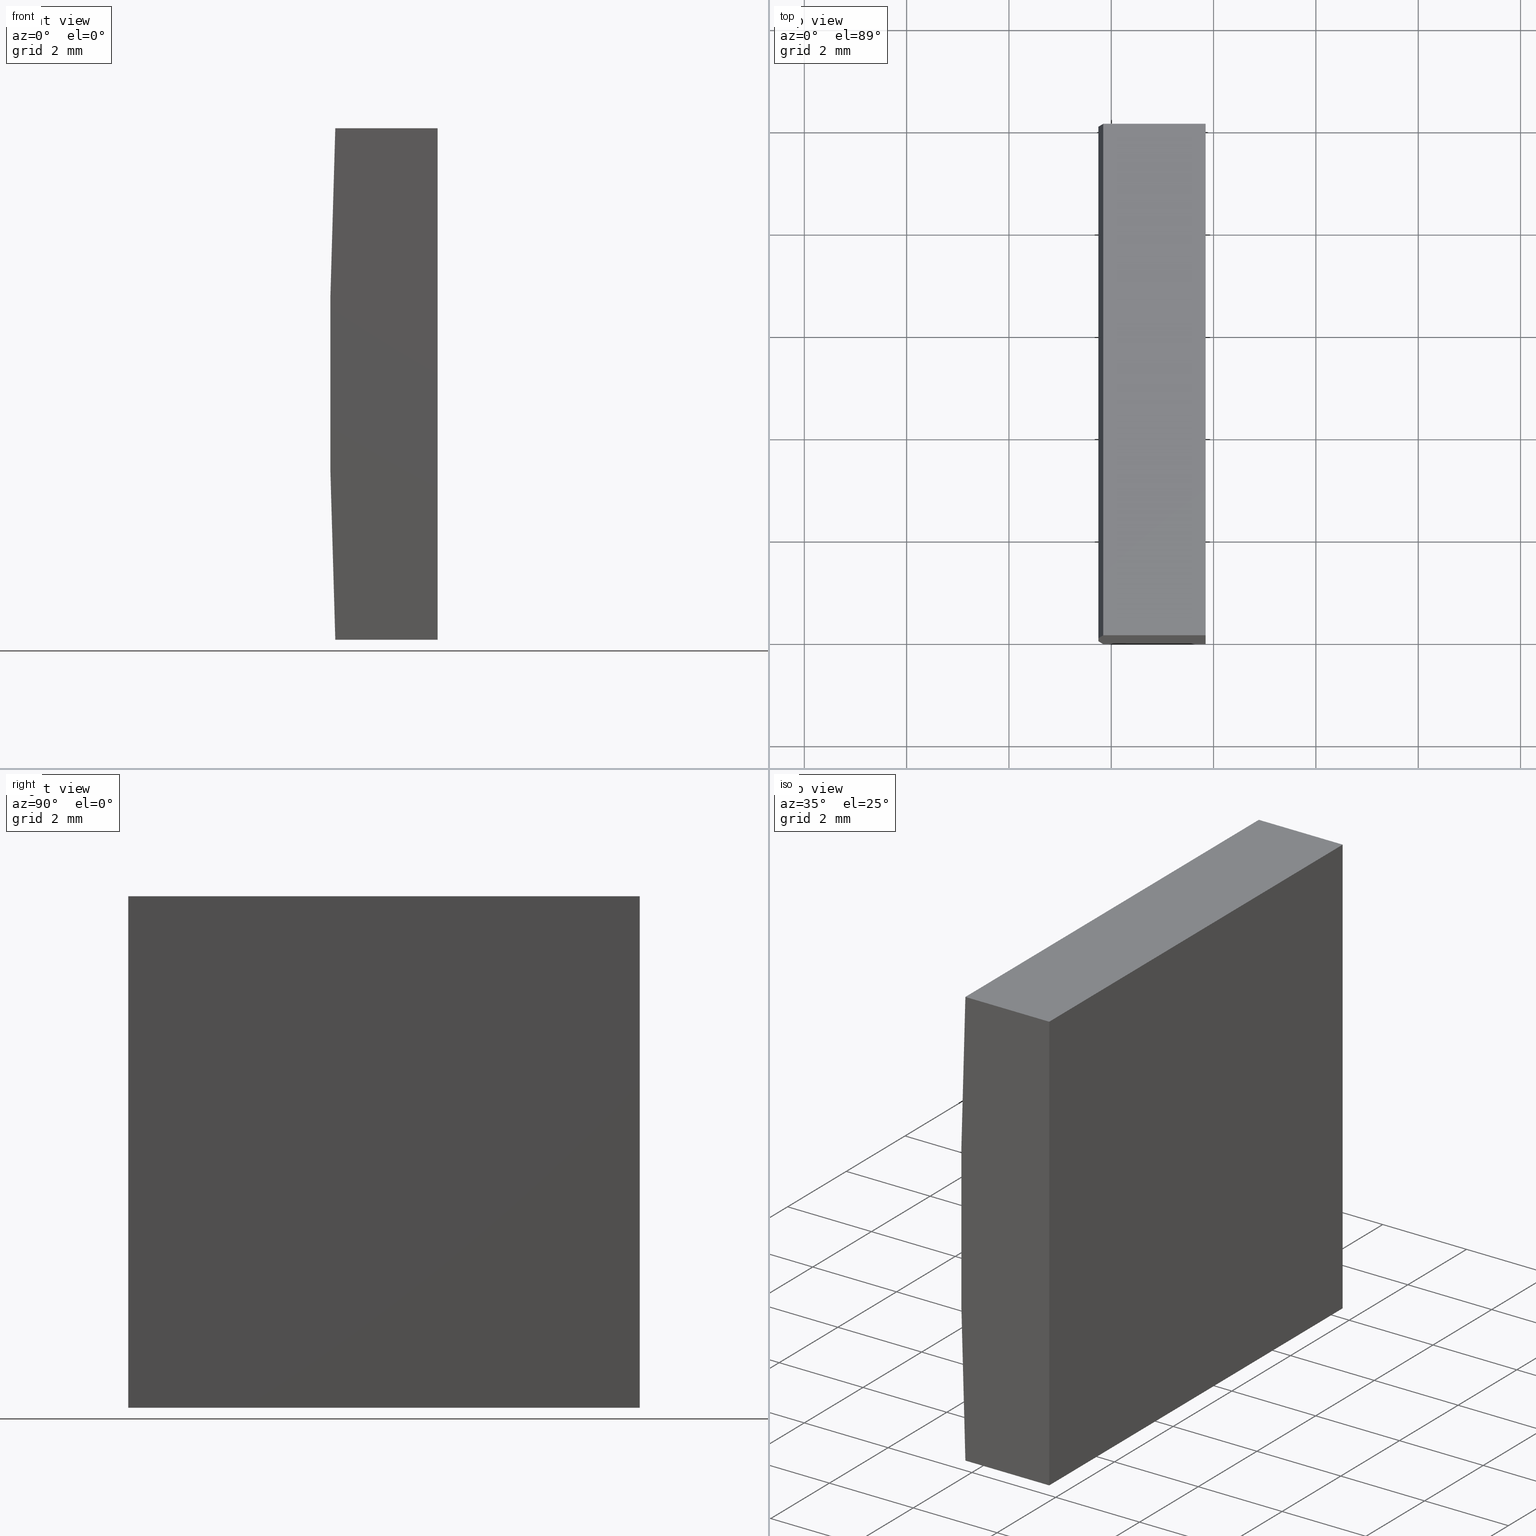
[diagram: canonical four-view strip — front | top / right | iso, engineering-drawing reading convention]
A machine part, canonical four-view strip (front | top / right | iso — engineering-drawing reading convention). The complete STEP part file that produces these views, byte-faithful:
ISO-10303-21;
HEADER;
FILE_DESCRIPTION (( 'STEP AP214' ),
    '1' );
FILE_NAME ('155273.STEP',
    '2019-06-25T06:14:44',
    ( 'user' ),
    ( '΢���й�' ),
    'SwSTEP 2.0',
    'SolidWorks 2016',
    '' );
FILE_SCHEMA (( 'AUTOMOTIVE_DESIGN' ));
ENDSEC;

DATA;
#1 = EDGE_LOOP ( 'NONE', ( #88, #16, #125, #121 ) ) ;
#2 = APPLICATION_CONTEXT ( 'automotive_design' ) ;
#3 = PRESENTATION_LAYER_ASSIGNMENT (  '', '', ( #74 ) ) ;
#4 = EDGE_CURVE ( 'NONE', #187, #155, #19, .T. ) ;
#5 = VECTOR ( 'NONE', #111, 1000.000000000000000 ) ;
#6 = EDGE_LOOP ( 'NONE', ( #146, #99, #149, #138 ) ) ;
#7 = EDGE_LOOP ( 'NONE', ( #32, #144, #176, #160 ) ) ;
#8 = AXIS2_PLACEMENT_3D ( 'NONE', #90, #14, #36 ) ;
#9 = ADVANCED_FACE ( 'NONE', ( #169 ), #158, .F. ) ;
#10 = SURFACE_STYLE_FILL_AREA ( #115 ) ;
#11 = SURFACE_STYLE_USAGE ( .BOTH. , #25 ) ;
#12 = ORIENTED_EDGE ( 'NONE', *, *, #18, .F. ) ;
#13 = LINE ( 'NONE', #142, #128 ) ;
#14 = DIRECTION ( 'NONE',  ( 0.0000000000000000000, 0.0000000000000000000, -1.000000000000000000 ) ) ;
#15 = PRESENTATION_STYLE_ASSIGNMENT (( #39 ) ) ;
#16 = ORIENTED_EDGE ( 'NONE', *, *, #168, .F. ) ;
#17 = MECHANICAL_DESIGN_GEOMETRIC_PRESENTATION_REPRESENTATION (  '', ( #47 ), #30 ) ;
#18 = EDGE_CURVE ( 'NONE', #183, #48, #190, .T. ) ;
#19 = CIRCLE ( 'NONE', #122, 114.6199999999999900 ) ;
#20 = DIRECTION ( 'NONE',  ( -0.0000000000000000000, -1.000000000000000000, -0.0000000000000000000 ) ) ;
#21 = VECTOR ( 'NONE', #20, 1000.000000000000000 ) ;
#22 = FACE_OUTER_BOUND ( 'NONE', #50, .T. ) ;
#23 = DIRECTION ( 'NONE',  ( 0.0000000000000000000, 1.000000000000000000, 0.0000000000000000000 ) ) ;
#24 = DIRECTION ( 'NONE',  ( -6.068825292768200200E-015, 0.0000000000000000000, 1.000000000000000000 ) ) ;
#25 = SURFACE_SIDE_STYLE ('',( #10 ) ) ;
#26 =( NAMED_UNIT ( * ) PLANE_ANGLE_UNIT ( ) SI_UNIT ( $, .RADIAN. ) );
#27 = EDGE_CURVE ( 'NONE', #48, #187, #91, .T. ) ;
#28 = LINE ( 'NONE', #93, #43 ) ;
#29 = VERTEX_POINT ( 'NONE', #82 ) ;
#30 =( GEOMETRIC_REPRESENTATION_CONTEXT ( 3 ) GLOBAL_UNCERTAINTY_ASSIGNED_CONTEXT ( ( #180 ) ) GLOBAL_UNIT_ASSIGNED_CONTEXT ( ( #95, #177, #156 ) ) REPRESENTATION_CONTEXT ( 'NONE', 'WORKASPACE' ) );
#31 = VECTOR ( 'NONE', #61, 1000.000000000000000 ) ;
#32 = ORIENTED_EDGE ( 'NONE', *, *, #110, .T. ) ;
#33 = EDGE_CURVE ( 'NONE', #56, #104, #172, .T. ) ;
#34 = PRODUCT_DEFINITION_FORMATION_WITH_SPECIFIED_SOURCE ( '�κ�', '', #166, .NOT_KNOWN. ) ;
#35 = FILL_AREA_STYLE ('',( #192 ) ) ;
#36 = DIRECTION ( 'NONE',  ( -1.000000000000000000, 0.0000000000000000000, -0.0000000000000000000 ) ) ;
#37 = EDGE_LOOP ( 'NONE', ( #194, #100, #12, #165 ) ) ;
#38 = DIRECTION ( 'NONE',  ( 0.0000000000000000000, 0.0000000000000000000, 1.000000000000000000 ) ) ;
#39 = SURFACE_STYLE_USAGE ( .BOTH. , #78 ) ;
#40 = ORIENTED_EDGE ( 'NONE', *, *, #168, .T. ) ;
#41 = CARTESIAN_POINT ( 'NONE',  ( -108.1547956651487400, 10.00000000000000000, -4.999999999999987600 ) ) ;
#42 = AXIS2_PLACEMENT_3D ( 'NONE', #80, #167, #38 ) ;
#43 = VECTOR ( 'NONE', #164, 1000.000000000000000 ) ;
#44 =( GEOMETRIC_REPRESENTATION_CONTEXT ( 3 ) GLOBAL_UNCERTAINTY_ASSIGNED_CONTEXT ( ( #76 ) ) GLOBAL_UNIT_ASSIGNED_CONTEXT ( ( #70, #97, #113 ) ) REPRESENTATION_CONTEXT ( 'NONE', 'WORKASPACE' ) );
#45 = DIRECTION ( 'NONE',  ( -1.000000000000000000, -0.0000000000000000000, -6.068825292768200200E-015 ) ) ;
#46 = CYLINDRICAL_SURFACE ( 'NONE', #86, 114.6199999999999900 ) ;
#47 = STYLED_ITEM ( 'NONE', ( #154 ), #141 ) ;
#48 = VERTEX_POINT ( 'NONE', #132 ) ;
#49 = CARTESIAN_POINT ( 'NONE',  ( 4.355204334851265500, 0.0000000000000000000, 4.286263797015675000E-017 ) ) ;
#50 = EDGE_LOOP ( 'NONE', ( #139, #134, #103, #40 ) ) ;
#51 = AXIS2_PLACEMENT_3D ( 'NONE', #150, #63, #186 ) ;
#52 = ADVANCED_FACE ( 'NONE', ( #181 ), #145, .T. ) ;
#53 = CLOSED_SHELL ( 'NONE', ( #117, #9, #188, #157, #52, #199 ) ) ;
#54 = DIRECTION ( 'NONE',  ( -0.0000000000000000000, -0.0000000000000000000, -1.000000000000000000 ) ) ;
#55 = CARTESIAN_POINT ( 'NONE',  ( 4.355204334851265500, 10.00000000000000000, 4.286263797015675000E-017 ) ) ;
#56 = VERTEX_POINT ( 'NONE', #120 ) ;
#57 = DIRECTION ( 'NONE',  ( 0.0000000000000000000, 0.0000000000000000000, 1.000000000000000000 ) ) ;
#58 = DIRECTION ( 'NONE',  ( -0.0000000000000000000, -1.000000000000000000, -0.0000000000000000000 ) ) ;
#59 = ORIENTED_EDGE ( 'NONE', *, *, #129, .F. ) ;
#60 = VECTOR ( 'NONE', #131, 1000.000000000000000 ) ;
#61 = DIRECTION ( 'NONE',  ( -0.0000000000000000000, -1.000000000000000000, -0.0000000000000000000 ) ) ;
#62 = SHAPE_DEFINITION_REPRESENTATION ( #112, #94 ) ;
#63 = DIRECTION ( 'NONE',  ( 0.0000000000000000000, 1.000000000000000000, 0.0000000000000000000 ) ) ;
#64 = CARTESIAN_POINT ( 'NONE',  ( -110.1556877235027200, 10.00000000000000000, 5.000000000000000000 ) ) ;
#65 = AXIS2_PLACEMENT_3D ( 'NONE', #116, #23, #147 ) ;
#66 = FACE_OUTER_BOUND ( 'NONE', #6, .T. ) ;
#67 = FILL_AREA_STYLE_COLOUR ( '', #87 ) ;
#68 = COLOUR_RGB ( '',1.000000000000000000, 1.000000000000000000, 1.000000000000000000 ) ;
#69 = CARTESIAN_POINT ( 'NONE',  ( -110.1556877235027200, 10.00000000000000000, -5.000000000000000000 ) ) ;
#70 =( LENGTH_UNIT ( ) NAMED_UNIT ( * ) SI_UNIT ( .MILLI., .METRE. ) );
#71 = EDGE_CURVE ( 'NONE', #155, #183, #28, .T. ) ;
#72 = CARTESIAN_POINT ( 'NONE',  ( -110.1556877235027200, 0.0000000000000000000, 5.000000000000000000 ) ) ;
#73 = VECTOR ( 'NONE', #58, 1000.000000000000000 ) ;
#74 = STYLED_ITEM ( 'NONE', ( #15 ), #94 ) ;
#75 = DIRECTION ( 'NONE',  ( -0.0000000000000000000, -0.0000000000000000000, -1.000000000000000000 ) ) ;
#76 = UNCERTAINTY_MEASURE_WITH_UNIT (LENGTH_MEASURE( 1.000000000000000100E-005 ), #70, 'distance_accuracy_value', 'NONE');
#77 = CARTESIAN_POINT ( 'NONE',  ( -108.1547956651487400, 0.0000000000000000000, -4.999999999999987600 ) ) ;
#78 = SURFACE_SIDE_STYLE ('',( #198 ) ) ;
#79 = APPLICATION_PROTOCOL_DEFINITION ( 'draft international standard', 'automotive_design', 1998, #2 ) ;
#80 = CARTESIAN_POINT ( 'NONE',  ( -108.1547956651487400, 10.00000000000000000, -4.999999999999987600 ) ) ;
#81 = CARTESIAN_POINT ( 'NONE',  ( -108.1547956651487400, 10.00000000000000000, 5.000000000000000000 ) ) ;
#82 = CARTESIAN_POINT ( 'NONE',  ( -110.1556877235027200, 10.00000000000000000, 5.000000000000000000 ) ) ;
#83 = PRODUCT_DEFINITION_CONTEXT ( 'detailed design', #136, 'design' ) ;
#84 = EDGE_CURVE ( 'NONE', #119, #183, #123, .T. ) ;
#85 = CARTESIAN_POINT ( 'NONE',  ( -110.1556877235027200, 10.00000000000000000, -5.000000000000000000 ) ) ;
#86 = AXIS2_PLACEMENT_3D ( 'NONE', #55, #175, #163 ) ;
#87 = COLOUR_RGB ( '',1.000000000000000000, 1.000000000000000000, 1.000000000000000000 ) ;
#88 = ORIENTED_EDGE ( 'NONE', *, *, #18, .T. ) ;
#89 =( LENGTH_UNIT ( ) NAMED_UNIT ( * ) SI_UNIT ( .MILLI., .METRE. ) );
#90 = CARTESIAN_POINT ( 'NONE',  ( -110.1556877235027200, 10.00000000000000000, 5.000000000000000000 ) ) ;
#91 = LINE ( 'NONE', #201, #130 ) ;
#92 = DIRECTION ( 'NONE',  ( 1.000000000000000000, 0.0000000000000000000, 0.0000000000000000000 ) ) ;
#93 = CARTESIAN_POINT ( 'NONE',  ( -110.1556877235027200, 0.0000000000000000000, 5.000000000000000000 ) ) ;
#94 = ADVANCED_BREP_SHAPE_REPRESENTATION ( '155273', ( #141, #96 ), #114 ) ;
#95 =( LENGTH_UNIT ( ) NAMED_UNIT ( * ) SI_UNIT ( .MILLI., .METRE. ) );
#96 = AXIS2_PLACEMENT_3D ( 'NONE', #193, #57, #162 ) ;
#97 =( NAMED_UNIT ( * ) PLANE_ANGLE_UNIT ( ) SI_UNIT ( $, .RADIAN. ) );
#98 = LINE ( 'NONE', #41, #31 ) ;
#99 = ORIENTED_EDGE ( 'NONE', *, *, #106, .F. ) ;
#100 = ORIENTED_EDGE ( 'NONE', *, *, #27, .F. ) ;
#101 = DIRECTION ( 'NONE',  ( 1.000000000000000000, 0.0000000000000000000, 6.068825292768200200E-015 ) ) ;
#102 = EDGE_CURVE ( 'NONE', #119, #56, #143, .T. ) ;
#103 = ORIENTED_EDGE ( 'NONE', *, *, #33, .F. ) ;
#104 = VERTEX_POINT ( 'NONE', #152 ) ;
#105 = EDGE_LOOP ( 'NONE', ( #126, #109, #59, #191 ) ) ;
#106 = EDGE_CURVE ( 'NONE', #29, #155, #197, .T. ) ;
#107 = LINE ( 'NONE', #85, #73 ) ;
#108 = APPLICATION_PROTOCOL_DEFINITION ( 'draft international standard', 'automotive_design', 1998, #136 ) ;
#109 = ORIENTED_EDGE ( 'NONE', *, *, #84, .F. ) ;
#110 = EDGE_CURVE ( 'NONE', #104, #29, #124, .T. ) ;
#111 = DIRECTION ( 'NONE',  ( -0.0000000000000000000, -1.000000000000000000, -0.0000000000000000000 ) ) ;
#112 = PRODUCT_DEFINITION_SHAPE ( 'NONE', 'NONE',  #173 ) ;
#113 =( NAMED_UNIT ( * ) SI_UNIT ( $, .STERADIAN. ) SOLID_ANGLE_UNIT ( ) );
#114 =( GEOMETRIC_REPRESENTATION_CONTEXT ( 3 ) GLOBAL_UNCERTAINTY_ASSIGNED_CONTEXT ( ( #203 ) ) GLOBAL_UNIT_ASSIGNED_CONTEXT ( ( #89, #26, #204 ) ) REPRESENTATION_CONTEXT ( 'NONE', 'WORKASPACE' ) );
#115 = FILL_AREA_STYLE ('',( #67 ) ) ;
#116 = CARTESIAN_POINT ( 'NONE',  ( 4.355204334851265500, 0.0000000000000000000, 4.286263797015675000E-017 ) ) ;
#117 = ADVANCED_FACE ( 'NONE', ( #66 ), #46, .T. ) ;
#118 = CARTESIAN_POINT ( 'NONE',  ( -110.1556877235027200, 10.00000000000000000, -5.000000000000000000 ) ) ;
#119 = VERTEX_POINT ( 'NONE', #81 ) ;
#120 = CARTESIAN_POINT ( 'NONE',  ( -108.1547956651487400, 10.00000000000000000, -4.999999999999987600 ) ) ;
#121 = ORIENTED_EDGE ( 'NONE', *, *, #84, .T. ) ;
#122 = AXIS2_PLACEMENT_3D ( 'NONE', #49, #151, #133 ) ;
#123 = LINE ( 'NONE', #127, #5 ) ;
#124 = CIRCLE ( 'NONE', #135, 114.6199999999999900 ) ;
#125 = ORIENTED_EDGE ( 'NONE', *, *, #102, .F. ) ;
#126 = ORIENTED_EDGE ( 'NONE', *, *, #71, .T. ) ;
#127 = CARTESIAN_POINT ( 'NONE',  ( -108.1547956651487400, 10.00000000000000000, 5.000000000000000000 ) ) ;
#128 = VECTOR ( 'NONE', #92, 1000.000000000000000 ) ;
#129 = EDGE_CURVE ( 'NONE', #29, #119, #13, .T. ) ;
#130 = VECTOR ( 'NONE', #45, 1000.000000000000000 ) ;
#131 = DIRECTION ( 'NONE',  ( -1.000000000000000000, -0.0000000000000000000, -6.068825292768200200E-015 ) ) ;
#132 = CARTESIAN_POINT ( 'NONE',  ( -108.1547956651487400, 0.0000000000000000000, -4.999999999999987600 ) ) ;
#133 = DIRECTION ( 'NONE',  ( 0.0000000000000000000, 0.0000000000000000000, 1.000000000000000000 ) ) ;
#134 = ORIENTED_EDGE ( 'NONE', *, *, #171, .F. ) ;
#135 = AXIS2_PLACEMENT_3D ( 'NONE', #185, #153, #161 ) ;
#136 = APPLICATION_CONTEXT ( 'automotive_design' ) ;
#137 = MECHANICAL_DESIGN_GEOMETRIC_PRESENTATION_REPRESENTATION (  '', ( #74 ), #44 ) ;
#138 = ORIENTED_EDGE ( 'NONE', *, *, #171, .T. ) ;
#139 = ORIENTED_EDGE ( 'NONE', *, *, #27, .T. ) ;
#140 = PRODUCT_CONTEXT ( 'NONE', #2, 'mechanical' ) ;
#141 = MANIFOLD_SOLID_BREP ( '͹̨-����1', #53 ) ;
#142 = CARTESIAN_POINT ( 'NONE',  ( -110.1556877235027200, 10.00000000000000000, 5.000000000000000000 ) ) ;
#143 = LINE ( 'NONE', #174, #200 ) ;
#144 = ORIENTED_EDGE ( 'NONE', *, *, #129, .T. ) ;
#145 = PLANE ( 'NONE',  #51 ) ;
#146 = ORIENTED_EDGE ( 'NONE', *, *, #4, .T. ) ;
#147 = DIRECTION ( 'NONE',  ( 0.0000000000000000000, -0.0000000000000000000, 1.000000000000000000 ) ) ;
#148 = VECTOR ( 'NONE', #75, 1000.000000000000000 ) ;
#149 = ORIENTED_EDGE ( 'NONE', *, *, #110, .F. ) ;
#150 = CARTESIAN_POINT ( 'NONE',  ( 4.355204334851265500, 10.00000000000000000, 4.286263797015675000E-017 ) ) ;
#151 = DIRECTION ( 'NONE',  ( 0.0000000000000000000, 1.000000000000000000, 0.0000000000000000000 ) ) ;
#152 = CARTESIAN_POINT ( 'NONE',  ( -110.1556877235027200, 10.00000000000000000, -5.000000000000000000 ) ) ;
#153 = DIRECTION ( 'NONE',  ( 0.0000000000000000000, 1.000000000000000000, 0.0000000000000000000 ) ) ;
#154 = PRESENTATION_STYLE_ASSIGNMENT (( #11 ) ) ;
#155 = VERTEX_POINT ( 'NONE', #72 ) ;
#156 =( NAMED_UNIT ( * ) SI_UNIT ( $, .STERADIAN. ) SOLID_ANGLE_UNIT ( ) );
#157 = ADVANCED_FACE ( 'NONE', ( #22 ), #182, .F. ) ;
#158 = PLANE ( 'NONE',  #8 ) ;
#159 = FACE_OUTER_BOUND ( 'NONE', #1, .T. ) ;
#160 = ORIENTED_EDGE ( 'NONE', *, *, #33, .T. ) ;
#161 = DIRECTION ( 'NONE',  ( 0.0000000000000000000, 0.0000000000000000000, 1.000000000000000000 ) ) ;
#162 = DIRECTION ( 'NONE',  ( 1.000000000000000000, 0.0000000000000000000, 0.0000000000000000000 ) ) ;
#163 = DIRECTION ( 'NONE',  ( 0.0000000000000000000, 0.0000000000000000000, -1.000000000000000000 ) ) ;
#164 = DIRECTION ( 'NONE',  ( 1.000000000000000000, 0.0000000000000000000, 0.0000000000000000000 ) ) ;
#165 = ORIENTED_EDGE ( 'NONE', *, *, #71, .F. ) ;
#166 = PRODUCT ( '155273', '155273', '', ( #140 ) ) ;
#167 = DIRECTION ( 'NONE',  ( -1.000000000000000000, 0.0000000000000000000, 0.0000000000000000000 ) ) ;
#168 = EDGE_CURVE ( 'NONE', #56, #48, #98, .T. ) ;
#169 = FACE_OUTER_BOUND ( 'NONE', #105, .T. ) ;
#170 = PLANE ( 'NONE',  #42 ) ;
#171 = EDGE_CURVE ( 'NONE', #104, #187, #107, .T. ) ;
#172 = LINE ( 'NONE', #118, #60 ) ;
#173 = PRODUCT_DEFINITION ( 'δ֪', '', #34, #83 ) ;
#174 = CARTESIAN_POINT ( 'NONE',  ( -108.1547956651487400, 10.00000000000000000, -4.999999999999987600 ) ) ;
#175 = DIRECTION ( 'NONE',  ( -0.0000000000000000000, -1.000000000000000000, -0.0000000000000000000 ) ) ;
#176 = ORIENTED_EDGE ( 'NONE', *, *, #102, .T. ) ;
#177 =( NAMED_UNIT ( * ) PLANE_ANGLE_UNIT ( ) SI_UNIT ( $, .RADIAN. ) );
#178 = FACE_OUTER_BOUND ( 'NONE', #37, .T. ) ;
#179 = CARTESIAN_POINT ( 'NONE',  ( -110.1556877235027200, 0.0000000000000000000, -5.000000000000000000 ) ) ;
#180 = UNCERTAINTY_MEASURE_WITH_UNIT (LENGTH_MEASURE( 1.000000000000000100E-005 ), #95, 'distance_accuracy_value', 'NONE');
#181 = FACE_OUTER_BOUND ( 'NONE', #7, .T. ) ;
#182 = PLANE ( 'NONE',  #196 ) ;
#183 = VERTEX_POINT ( 'NONE', #202 ) ;
#184 = PRESENTATION_LAYER_ASSIGNMENT (  '', '', ( #47 ) ) ;
#185 = CARTESIAN_POINT ( 'NONE',  ( 4.355204334851265500, 10.00000000000000000, 4.286263797015675000E-017 ) ) ;
#186 = DIRECTION ( 'NONE',  ( 0.0000000000000000000, -0.0000000000000000000, 1.000000000000000000 ) ) ;
#187 = VERTEX_POINT ( 'NONE', #179 ) ;
#188 = ADVANCED_FACE ( 'NONE', ( #159 ), #170, .F. ) ;
#189 = PRODUCT_RELATED_PRODUCT_CATEGORY ( 'part', '', ( #166 ) ) ;
#190 = LINE ( 'NONE', #77, #148 ) ;
#191 = ORIENTED_EDGE ( 'NONE', *, *, #106, .T. ) ;
#192 = FILL_AREA_STYLE_COLOUR ( '', #68 ) ;
#193 = CARTESIAN_POINT ( 'NONE',  ( 0.0000000000000000000, 0.0000000000000000000, 0.0000000000000000000 ) ) ;
#194 = ORIENTED_EDGE ( 'NONE', *, *, #4, .F. ) ;
#195 = PLANE ( 'NONE',  #65 ) ;
#196 = AXIS2_PLACEMENT_3D ( 'NONE', #69, #24, #101 ) ;
#197 = LINE ( 'NONE', #64, #21 ) ;
#198 = SURFACE_STYLE_FILL_AREA ( #35 ) ;
#199 = ADVANCED_FACE ( 'NONE', ( #178 ), #195, .F. ) ;
#200 = VECTOR ( 'NONE', #54, 1000.000000000000000 ) ;
#201 = CARTESIAN_POINT ( 'NONE',  ( -110.1556877235027200, 0.0000000000000000000, -5.000000000000000000 ) ) ;
#202 = CARTESIAN_POINT ( 'NONE',  ( -108.1547956651487400, 0.0000000000000000000, 5.000000000000000000 ) ) ;
#203 = UNCERTAINTY_MEASURE_WITH_UNIT (LENGTH_MEASURE( 1.000000000000000100E-005 ), #89, 'distance_accuracy_value', 'NONE');
#204 =( NAMED_UNIT ( * ) SI_UNIT ( $, .STERADIAN. ) SOLID_ANGLE_UNIT ( ) );
ENDSEC;
END-ISO-10303-21;
